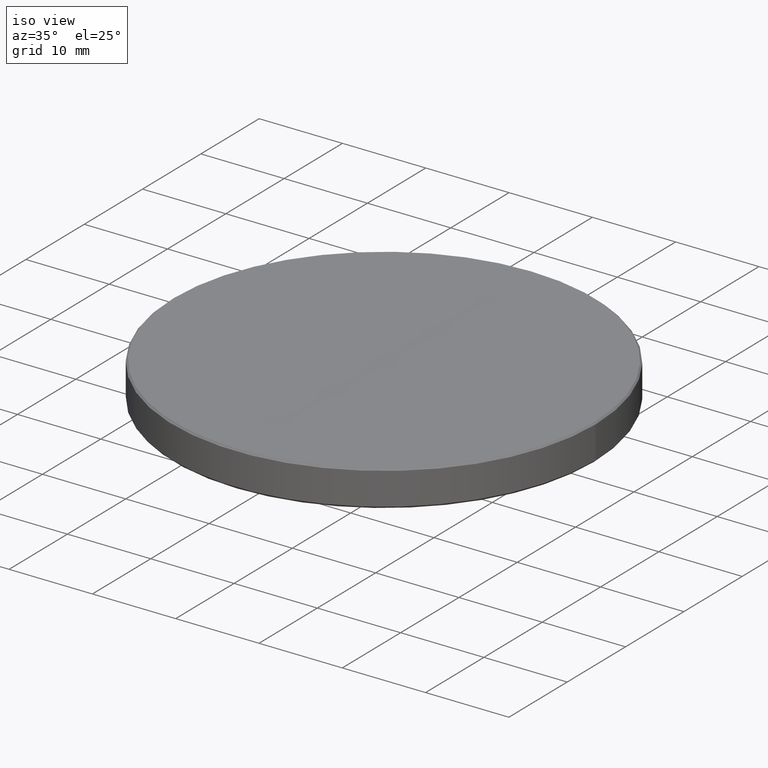
[diagram: clean part render]
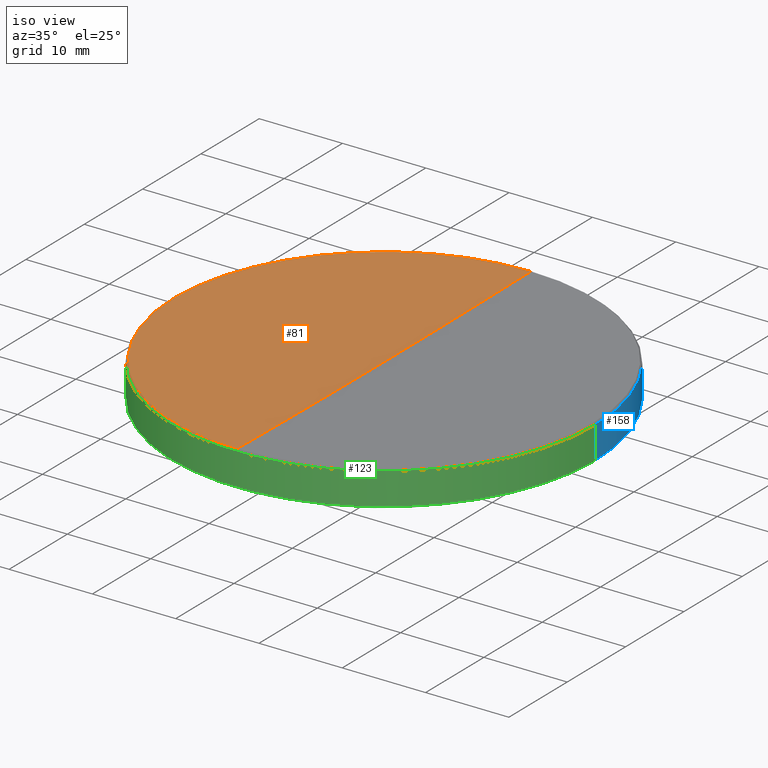
[diagram: same view with three faces highlighted in distinct colors, each labeled with its STEP entity id]
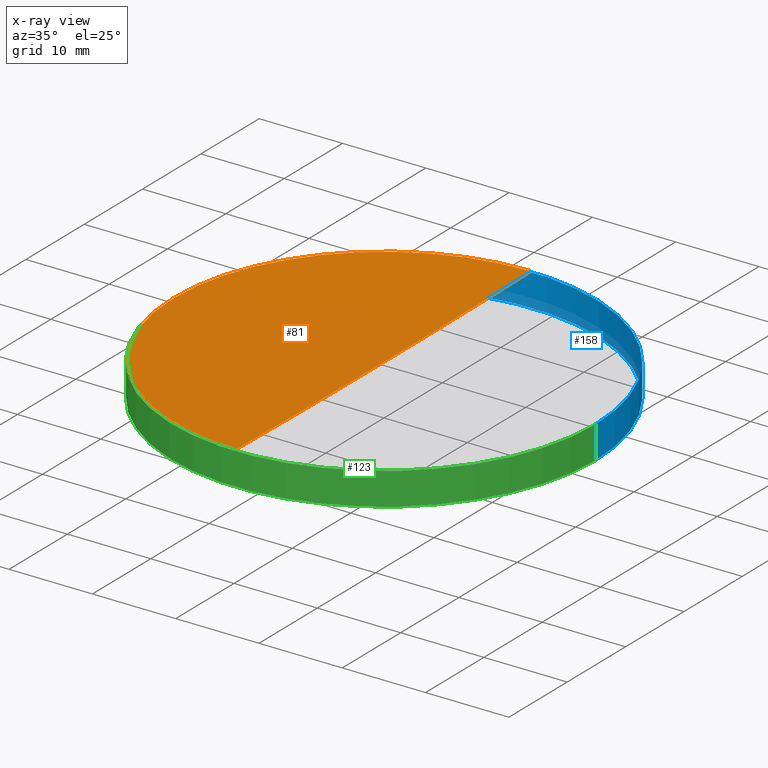
[diagram: x-ray of the same camera — body ghosted, the three highlighted faces saturated]
A machine part, iso view with three faces highlighted in distinct colors.
The next image is the same camera in x-ray (body ghosted, the three faces saturated) — at least one of them is partly hidden behind the body in this view.
Their STEP definitions:

[orange] entity #81 — the highlighted spherical surface has radius 1580.24 mm.
#5 = EDGE_CURVE ( 'NONE', #118, #88, #39, .T. ) ;
#18 = AXIS2_PLACEMENT_3D ( 'NONE', #20, #99, #174 ) ;
#20 = CARTESIAN_POINT ( 'NONE',  ( 0.000000000000000000, 0.000000000000000000, 1597.335853264096386 ) ) ;
#25 = AXIS2_PLACEMENT_3D ( 'NONE', #36, #50, #227 ) ;
#36 = CARTESIAN_POINT ( 'NONE',  ( 0.000000000000000000, 0.000000000000000000, 1597.335853264096386 ) ) ;
#39 = CIRCLE ( 'NONE', #25, 1580.240000000000236 ) ;
#40 = CIRCLE ( 'NONE', #309, 25.20315217857431023 ) ;
#49 = DIRECTION ( 'NONE',  ( -1.000000000000000000, 0.000000000000000000, 0.000000000000000000 ) ) ;
#50 = DIRECTION ( 'NONE',  ( -1.000000000000000000, 1.224646799147353207E-16, 0.000000000000000000 ) ) ;
#57 = DIRECTION ( 'NONE',  ( -0.000000000000000000, -0.000000000000000000, 1.000000000000000000 ) ) ;
#60 = CARTESIAN_POINT ( 'NONE',  ( -25.20315217857431023, 0.000000000000000000, 17.29684782142548727 ) ) ;
#69 = ORIENTED_EDGE ( 'NONE', *, *, #5, .F. ) ;
#70 = CARTESIAN_POINT ( 'NONE',  ( 0.000000000000000000, 0.000000000000000000, 1597.335853264096386 ) ) ;
#81 = ADVANCED_FACE ( 'NONE', ( #196 ), #103, .F. ) ;
#88 = VERTEX_POINT ( 'NONE', #171 ) ;
#99 = DIRECTION ( 'NONE',  ( 1.000000000000000000, 0.000000000000000000, 0.000000000000000000 ) ) ;
#103 = SPHERICAL_SURFACE ( 'NONE', #236, 1580.240000000000236 ) ;
#107 = EDGE_CURVE ( 'NONE', #143, #170, #40, .T. ) ;
#109 = CIRCLE ( 'NONE', #209, 25.20315217857431023 ) ;
#114 = ORIENTED_EDGE ( 'NONE', *, *, #107, .T. ) ;
#115 = EDGE_CURVE ( 'NONE', #118, #143, #144, .T. ) ;
#118 = VERTEX_POINT ( 'NONE', #200 ) ;
#122 = EDGE_LOOP ( 'NONE', ( #69, #211, #114, #238 ) ) ;
#127 = DIRECTION ( 'NONE',  ( 0.000000000000000000, 1.000000000000000000, 0.000000000000000000 ) ) ;
#143 = VERTEX_POINT ( 'NONE', #159 ) ;
#144 = CIRCLE ( 'NONE', #18, 1580.240000000000236 ) ;
#152 = DIRECTION ( 'NONE',  ( 1.000000000000000000, 0.000000000000000000, 0.000000000000000000 ) ) ;
#159 = CARTESIAN_POINT ( 'NONE',  ( 0.000000000000000000, 25.20315217857234202, 17.29684782142537713 ) ) ;
#170 = VERTEX_POINT ( 'NONE', #60 ) ;
#171 = CARTESIAN_POINT ( 'NONE',  ( -3.086495964391225684E-15, -25.20315217857234202, 17.29684782142537713 ) ) ;
#174 = DIRECTION ( 'NONE',  ( 0.000000000000000000, 0.000000000000000000, -1.000000000000000000 ) ) ;
#196 = FACE_OUTER_BOUND ( 'NONE', #122, .T. ) ;
#200 = CARTESIAN_POINT ( 'NONE',  ( 0.000000000000000000, 9.676179289423068622E-14, 17.09585326409612804 ) ) ;
#204 = CARTESIAN_POINT ( 'NONE',  ( 0.000000000000000000, 0.000000000000000000, 17.29684782142548727 ) ) ;
#205 = CARTESIAN_POINT ( 'NONE',  ( 0.000000000000000000, 0.000000000000000000, 17.29684782142548727 ) ) ;
#209 = AXIS2_PLACEMENT_3D ( 'NONE', #205, #57, #152 ) ;
#211 = ORIENTED_EDGE ( 'NONE', *, *, #115, .T. ) ;
#218 = EDGE_CURVE ( 'NONE', #170, #88, #109, .T. ) ;
#227 = DIRECTION ( 'NONE',  ( -1.224646799147353207E-16, -1.000000000000000000, 0.000000000000000000 ) ) ;
#236 = AXIS2_PLACEMENT_3D ( 'NONE', #70, #49, #127 ) ;
#238 = ORIENTED_EDGE ( 'NONE', *, *, #218, .T. ) ;
#243 = DIRECTION ( 'NONE',  ( -0.000000000000000000, -0.000000000000000000, 1.000000000000000000 ) ) ;
#306 = DIRECTION ( 'NONE',  ( 1.000000000000000000, 0.000000000000000000, 0.000000000000000000 ) ) ;
#309 = AXIS2_PLACEMENT_3D ( 'NONE', #204, #243, #306 ) ;

[blue] entity #158 — the highlighted cylindrical surface (partial cylindrical patch) has radius 25.4 mm, axis along (-0, -0, -1).
#1 = DIRECTION ( 'NONE',  ( -0.000000000000000000, -0.000000000000000000, 1.000000000000000000 ) ) ;
#3 = VECTOR ( 'NONE', #100, 1000.000000000000000 ) ;
#13 = VERTEX_POINT ( 'NONE', #26 ) ;
#26 = CARTESIAN_POINT ( 'NONE',  ( -25.39999999999999858, 0.000000000000000000, 13.21592418636929978 ) ) ;
#28 = DIRECTION ( 'NONE',  ( -1.000000000000000000, 0.000000000000000000, 0.000000000000000000 ) ) ;
#31 = DIRECTION ( 'NONE',  ( -0.000000000000000000, -0.000000000000000000, -1.000000000000000000 ) ) ;
#61 = AXIS2_PLACEMENT_3D ( 'NONE', #251, #228, #250 ) ;
#78 = DIRECTION ( 'NONE',  ( -0.000000000000000000, -0.000000000000000000, -1.000000000000000000 ) ) ;
#82 = CIRCLE ( 'NONE', #61, 25.39999999999999858 ) ;
#90 = CARTESIAN_POINT ( 'NONE',  ( -25.39999999999999858, 0.000000000000000000, 17.09999999999989484 ) ) ;
#95 = CIRCLE ( 'NONE', #265, 25.39999999999999858 ) ;
#96 = VERTEX_POINT ( 'NONE', #268 ) ;
#100 = DIRECTION ( 'NONE',  ( -0.000000000000000000, -0.000000000000000000, -1.000000000000000000 ) ) ;
#130 = CARTESIAN_POINT ( 'NONE',  ( 0.000000000000000000, 0.000000000000000000, 13.21592418636929978 ) ) ;
#134 = CARTESIAN_POINT ( 'NONE',  ( -25.39999999999999858, 0.000000000000000000, 20.00000000000000000 ) ) ;
#137 = CARTESIAN_POINT ( 'NONE',  ( 25.39999999999999858, 3.110602869834276865E-15, 13.21592418636929978 ) ) ;
#140 = ORIENTED_EDGE ( 'NONE', *, *, #208, .T. ) ;
#142 = VERTEX_POINT ( 'NONE', #137 ) ;
#158 = ADVANCED_FACE ( 'NONE', ( #303 ), #206, .T. ) ;
#185 = EDGE_CURVE ( 'NONE', #323, #13, #255, .T. ) ;
#206 = CYLINDRICAL_SURFACE ( 'NONE', #294, 25.39999999999999858 ) ;
#208 = EDGE_CURVE ( 'NONE', #96, #142, #280, .T. ) ;
#219 = EDGE_LOOP ( 'NONE', ( #233, #140, #292, #264 ) ) ;
#228 = DIRECTION ( 'NONE',  ( 0.000000000000000000, 0.000000000000000000, -1.000000000000000000 ) ) ;
#231 = CARTESIAN_POINT ( 'NONE',  ( 0.000000000000000000, 0.000000000000000000, 20.00000000000000000 ) ) ;
#233 = ORIENTED_EDGE ( 'NONE', *, *, #262, .T. ) ;
#250 = DIRECTION ( 'NONE',  ( 1.000000000000000000, 0.000000000000000000, 0.000000000000000000 ) ) ;
#251 = CARTESIAN_POINT ( 'NONE',  ( 0.000000000000000000, 0.000000000000000000, 17.09999999999989484 ) ) ;
#255 = LINE ( 'NONE', #134, #318 ) ;
#262 = EDGE_CURVE ( 'NONE', #323, #96, #82, .T. ) ;
#264 = ORIENTED_EDGE ( 'NONE', *, *, #185, .F. ) ;
#265 = AXIS2_PLACEMENT_3D ( 'NONE', #130, #1, #28 ) ;
#268 = CARTESIAN_POINT ( 'NONE',  ( 25.39999999999999858, 3.110602869834276865E-15, 17.09999999999989484 ) ) ;
#272 = DIRECTION ( 'NONE',  ( -1.000000000000000000, 0.000000000000000000, 0.000000000000000000 ) ) ;
#273 = EDGE_CURVE ( 'NONE', #142, #13, #95, .T. ) ;
#277 = CARTESIAN_POINT ( 'NONE',  ( 25.39999999999999858, 3.110602869834276865E-15, 20.00000000000000000 ) ) ;
#280 = LINE ( 'NONE', #277, #3 ) ;
#292 = ORIENTED_EDGE ( 'NONE', *, *, #273, .T. ) ;
#294 = AXIS2_PLACEMENT_3D ( 'NONE', #231, #78, #272 ) ;
#303 = FACE_OUTER_BOUND ( 'NONE', #219, .T. ) ;
#318 = VECTOR ( 'NONE', #31, 1000.000000000000000 ) ;
#323 = VERTEX_POINT ( 'NONE', #90 ) ;

[green] entity #123 — the highlighted cylindrical surface (partial cylindrical patch) has radius 25.4 mm, axis along (-0, -0, -1).
#2 = CARTESIAN_POINT ( 'NONE',  ( 0.000000000000000000, 0.000000000000000000, 20.00000000000000000 ) ) ;
#3 = VECTOR ( 'NONE', #100, 1000.000000000000000 ) ;
#9 = AXIS2_PLACEMENT_3D ( 'NONE', #222, #177, #22 ) ;
#13 = VERTEX_POINT ( 'NONE', #26 ) ;
#21 = EDGE_CURVE ( 'NONE', #13, #142, #79, .T. ) ;
#22 = DIRECTION ( 'NONE',  ( -1.000000000000000000, 0.000000000000000000, 0.000000000000000000 ) ) ;
#24 = DIRECTION ( 'NONE',  ( 1.000000000000000000, 0.000000000000000000, 0.000000000000000000 ) ) ;
#26 = CARTESIAN_POINT ( 'NONE',  ( -25.39999999999999858, 0.000000000000000000, 13.21592418636929978 ) ) ;
#27 = CARTESIAN_POINT ( 'NONE',  ( 0.000000000000000000, 0.000000000000000000, 17.09999999999989484 ) ) ;
#31 = DIRECTION ( 'NONE',  ( -0.000000000000000000, -0.000000000000000000, -1.000000000000000000 ) ) ;
#35 = ORIENTED_EDGE ( 'NONE', *, *, #21, .T. ) ;
#77 = CYLINDRICAL_SURFACE ( 'NONE', #108, 25.39999999999999858 ) ;
#79 = CIRCLE ( 'NONE', #9, 25.39999999999999858 ) ;
#89 = ORIENTED_EDGE ( 'NONE', *, *, #208, .F. ) ;
#90 = CARTESIAN_POINT ( 'NONE',  ( -25.39999999999999858, 0.000000000000000000, 17.09999999999989484 ) ) ;
#96 = VERTEX_POINT ( 'NONE', #268 ) ;
#100 = DIRECTION ( 'NONE',  ( -0.000000000000000000, -0.000000000000000000, -1.000000000000000000 ) ) ;
#105 = DIRECTION ( 'NONE',  ( -0.000000000000000000, -0.000000000000000000, -1.000000000000000000 ) ) ;
#108 = AXIS2_PLACEMENT_3D ( 'NONE', #2, #105, #187 ) ;
#110 = DIRECTION ( 'NONE',  ( 0.000000000000000000, 0.000000000000000000, -1.000000000000000000 ) ) ;
#123 = ADVANCED_FACE ( 'NONE', ( #298 ), #77, .T. ) ;
#134 = CARTESIAN_POINT ( 'NONE',  ( -25.39999999999999858, 0.000000000000000000, 20.00000000000000000 ) ) ;
#135 = EDGE_CURVE ( 'NONE', #96, #323, #246, .T. ) ;
#137 = CARTESIAN_POINT ( 'NONE',  ( 25.39999999999999858, 3.110602869834276865E-15, 13.21592418636929978 ) ) ;
#142 = VERTEX_POINT ( 'NONE', #137 ) ;
#177 = DIRECTION ( 'NONE',  ( -0.000000000000000000, -0.000000000000000000, 1.000000000000000000 ) ) ;
#185 = EDGE_CURVE ( 'NONE', #323, #13, #255, .T. ) ;
#187 = DIRECTION ( 'NONE',  ( -1.000000000000000000, 0.000000000000000000, 0.000000000000000000 ) ) ;
#208 = EDGE_CURVE ( 'NONE', #96, #142, #280, .T. ) ;
#222 = CARTESIAN_POINT ( 'NONE',  ( 0.000000000000000000, 0.000000000000000000, 13.21592418636929978 ) ) ;
#246 = CIRCLE ( 'NONE', #293, 25.39999999999999858 ) ;
#255 = LINE ( 'NONE', #134, #318 ) ;
#268 = CARTESIAN_POINT ( 'NONE',  ( 25.39999999999999858, 3.110602869834276865E-15, 17.09999999999989484 ) ) ;
#277 = CARTESIAN_POINT ( 'NONE',  ( 25.39999999999999858, 3.110602869834276865E-15, 20.00000000000000000 ) ) ;
#280 = LINE ( 'NONE', #277, #3 ) ;
#288 = EDGE_LOOP ( 'NONE', ( #89, #314, #317, #35 ) ) ;
#293 = AXIS2_PLACEMENT_3D ( 'NONE', #27, #110, #24 ) ;
#298 = FACE_OUTER_BOUND ( 'NONE', #288, .T. ) ;
#314 = ORIENTED_EDGE ( 'NONE', *, *, #135, .T. ) ;
#317 = ORIENTED_EDGE ( 'NONE', *, *, #185, .T. ) ;
#318 = VECTOR ( 'NONE', #31, 1000.000000000000000 ) ;
#323 = VERTEX_POINT ( 'NONE', #90 ) ;